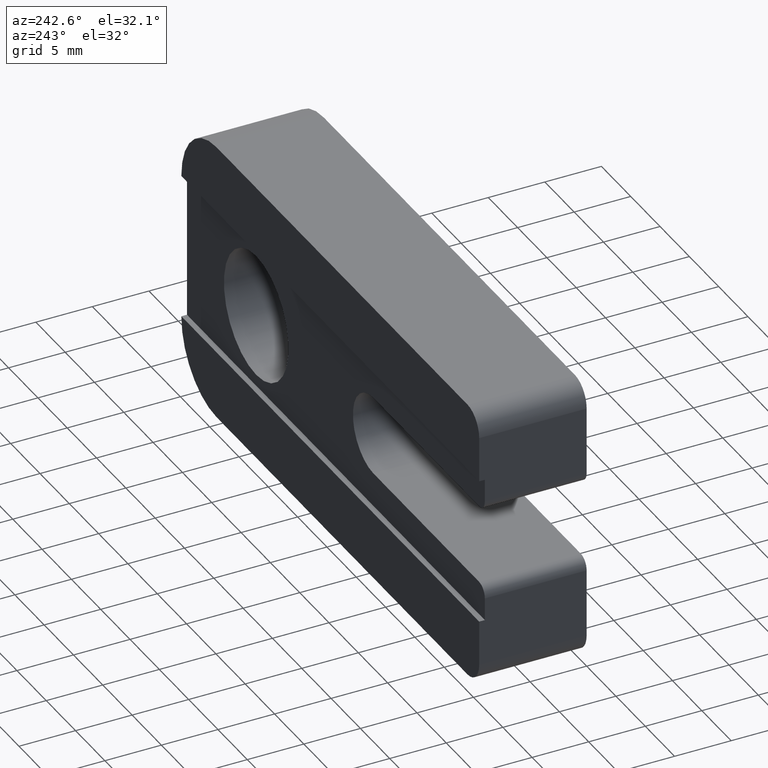
[diagram: clean part render]
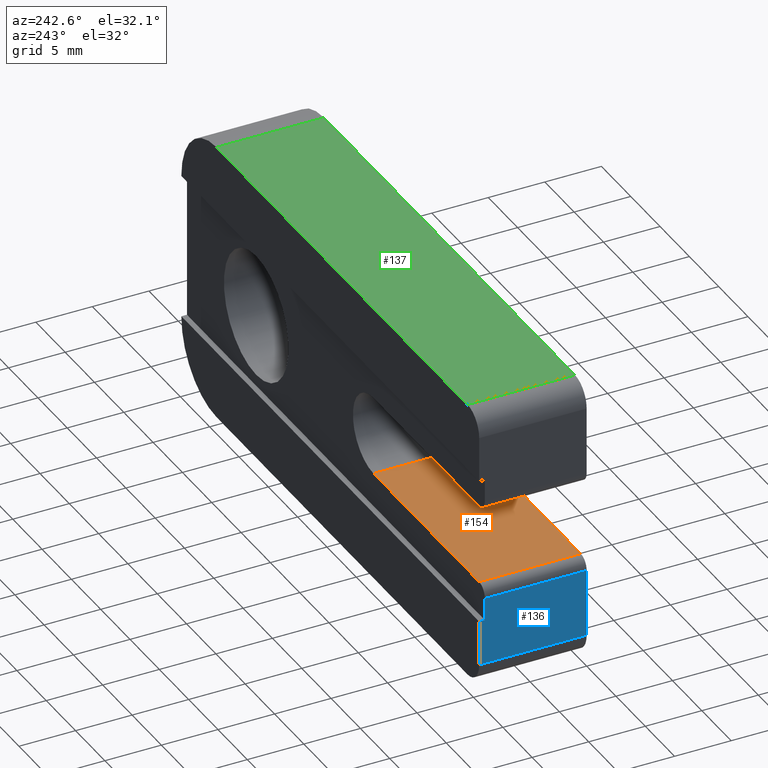
[diagram: same view with three faces highlighted in distinct colors, each labeled with its STEP entity id]
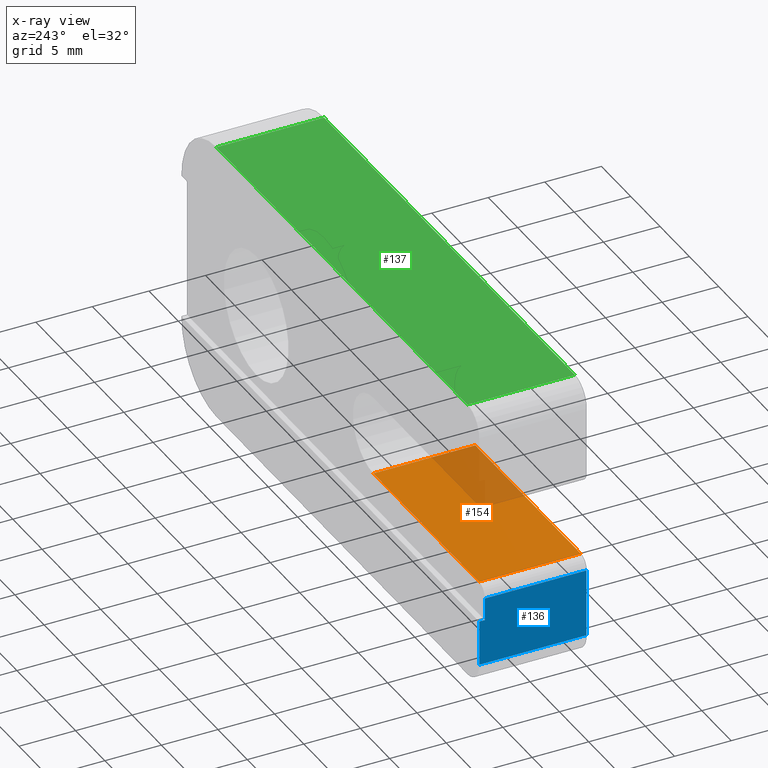
[diagram: x-ray of the same camera — body ghosted, the three highlighted faces saturated]
A machine part, auxiliary view with three faces highlighted in distinct colors.
The next image is the same camera in x-ray (body ghosted, the three faces saturated) — at least one of them is partly hidden behind the body in this view.
Their STEP definitions:

[orange] entity #154 — the highlighted planar face has unit normal (-0, 0, -1).
#6 = EDGE_CURVE ( 'NONE', #712, #718, #659, .T. ) ;
#18 = EDGE_CURVE ( 'NONE', #717, #718, #639, .T. ) ;
#44 = EDGE_CURVE ( 'NONE', #712, #714, #608, .T. ) ;
#46 = EDGE_CURVE ( 'NONE', #714, #717, #606, .T. ) ;
#96 = CARTESIAN_POINT ( 'NONE',  ( 18.99999999999999600, 0.0000000000000000000, -16.00000000000000000 ) ) ;
#101 = DIRECTION ( 'NONE',  ( -0.0000000000000000000, -1.000000000000000000, -0.0000000000000000000 ) ) ;
#104 = CARTESIAN_POINT ( 'NONE',  ( 18.99999999999999600, 9.500000000000000000, -16.00000000000000000 ) ) ;
#107 = DIRECTION ( 'NONE',  ( 1.000000000000000000, -0.0000000000000000000, -1.826024711554534200E-016 ) ) ;
#154 = ADVANCED_FACE ( 'NONE', ( #529 ), #161, .F. ) ;
#161 = PLANE ( 'NONE',  #726 ) ;
#164 = CARTESIAN_POINT ( 'NONE',  ( 18.99999999999999600, 9.500000000000000000, -16.00000000000000000 ) ) ;
#165 = DIRECTION ( 'NONE',  ( -1.826024711554534400E-016, 0.0000000000000000000, -1.000000000000000000 ) ) ;
#166 = DIRECTION ( 'NONE',  ( -1.000000000000000000, 0.0000000000000000000, 1.826024711554534400E-016 ) ) ;
#189 = CARTESIAN_POINT ( 'NONE',  ( 18.99999999999999600, 9.000000000000000000, -16.00000000000000000 ) ) ;
#191 = CARTESIAN_POINT ( 'NONE',  ( 1.000000000000000900, 9.000000000000000000, -15.99999999999999600 ) ) ;
#194 = CARTESIAN_POINT ( 'NONE',  ( 1.000000000000000900, 0.0000000000000000000, -15.99999999999999600 ) ) ;
#195 = CARTESIAN_POINT ( 'NONE',  ( 18.99999999999999600, 0.0000000000000000000, -16.00000000000000000 ) ) ;
#337 = EDGE_LOOP ( 'NONE', ( #668, #667, #666, #665 ) ) ;
#370 = DIRECTION ( 'NONE',  ( -1.000000000000000000, 0.0000000000000000000, 1.826024711554534400E-016 ) ) ;
#389 = DIRECTION ( 'NONE',  ( 0.0000000000000000000, -1.000000000000000000, 0.0000000000000000000 ) ) ;
#413 = CARTESIAN_POINT ( 'NONE',  ( 18.99999999999999600, 9.000000000000000000, -16.00000000000000000 ) ) ;
#445 = CARTESIAN_POINT ( 'NONE',  ( 1.000000000000000900, 9.500000000000000000, -15.99999999999999600 ) ) ;
#529 = FACE_OUTER_BOUND ( 'NONE', #337, .T. ) ;
#603 = VECTOR ( 'NONE', #389, 1000.000000000000000 ) ;
#605 = VECTOR ( 'NONE', #370, 1000.000000000000000 ) ;
#606 = LINE ( 'NONE', #445, #603 ) ;
#608 = LINE ( 'NONE', #413, #605 ) ;
#637 = VECTOR ( 'NONE', #107, 1000.000000000000000 ) ;
#639 = LINE ( 'NONE', #96, #637 ) ;
#652 = VECTOR ( 'NONE', #101, 1000.000000000000000 ) ;
#659 = LINE ( 'NONE', #104, #652 ) ;
#665 = ORIENTED_EDGE ( 'NONE', *, *, #6, .F. ) ;
#666 = ORIENTED_EDGE ( 'NONE', *, *, #18, .T. ) ;
#667 = ORIENTED_EDGE ( 'NONE', *, *, #46, .T. ) ;
#668 = ORIENTED_EDGE ( 'NONE', *, *, #44, .T. ) ;
#712 = VERTEX_POINT ( 'NONE', #189 ) ;
#714 = VERTEX_POINT ( 'NONE', #191 ) ;
#717 = VERTEX_POINT ( 'NONE', #194 ) ;
#718 = VERTEX_POINT ( 'NONE', #195 ) ;
#726 = AXIS2_PLACEMENT_3D ( 'NONE', #164, #165, #166 ) ;

[blue] entity #136 — the highlighted planar face has unit normal (1, 0, -0).
#8 = EDGE_CURVE ( 'NONE', #709, #713, #656, .T. ) ;
#9 = EDGE_CURVE ( 'NONE', #704, #708, #653, .T. ) ;
#11 = EDGE_CURVE ( 'NONE', #710, #711, #649, .T. ) ;
#32 = EDGE_CURVE ( 'NONE', #708, #711, #622, .T. ) ;
#48 = EDGE_CURVE ( 'NONE', #710, #713, #602, .T. ) ;
#76 = EDGE_CURVE ( 'NONE', #709, #704, #567, .T. ) ;
#81 = CARTESIAN_POINT ( 'NONE',  ( -1.541976423090495800E-015, 9.500000000000000000, -16.99999999999999600 ) ) ;
#84 = DIRECTION ( 'NONE',  ( 1.541976423090494400E-015, -0.0000000000000000000, 1.000000000000000000 ) ) ;
#85 = CARTESIAN_POINT ( 'NONE',  ( 0.0000000000000000000, 9.000000000000000000, -19.00000000000000400 ) ) ;
#89 = DIRECTION ( 'NONE',  ( 1.541976423090494400E-015, -0.0000000000000000000, 1.000000000000000000 ) ) ;
#94 = DIRECTION ( 'NONE',  ( 0.0000000000000000000, 0.0000000000000000000, 1.000000000000000000 ) ) ;
#115 = CARTESIAN_POINT ( 'NONE',  ( 0.0000000000000000000, 0.0000000000000000000, -15.99999999999999600 ) ) ;
#117 = CARTESIAN_POINT ( 'NONE',  ( 0.0000000000000000000, 9.500000000000000000, -15.99999999999999600 ) ) ;
#127 = DIRECTION ( 'NONE',  ( -0.0000000000000000000, 1.000000000000000000, -0.0000000000000000000 ) ) ;
#136 = ADVANCED_FACE ( 'NONE', ( #558 ), #364, .F. ) ;
#181 = CARTESIAN_POINT ( 'NONE',  ( -1.079383496163346100E-014, 0.0000000000000000000, -22.99999999999999600 ) ) ;
#185 = CARTESIAN_POINT ( 'NONE',  ( -1.541976423090495800E-015, 0.0000000000000000000, -16.99999999999999600 ) ) ;
#186 = CARTESIAN_POINT ( 'NONE',  ( -1.079383496163346100E-014, 9.500000000000000000, -22.99999999999999600 ) ) ;
#187 = CARTESIAN_POINT ( 'NONE',  ( 0.0000000000000000000, 9.000000000000000000, -19.00000000000000400 ) ) ;
#188 = CARTESIAN_POINT ( 'NONE',  ( 0.0000000000000000000, 9.000000000000000000, -16.99999999999999600 ) ) ;
#190 = CARTESIAN_POINT ( 'NONE',  ( 0.0000000000000000000, 9.500000000000000000, -19.00000000000000400 ) ) ;
#348 = EDGE_LOOP ( 'NONE', ( #674, #673, #672, #671, #670, #669 ) ) ;
#362 = CARTESIAN_POINT ( 'NONE',  ( 0.0000000000000000000, 9.500000000000000000, -15.99999999999999600 ) ) ;
#364 = PLANE ( 'NONE',  #745 ) ;
#374 = CARTESIAN_POINT ( 'NONE',  ( 0.0000000000000000000, 9.000000000000000000, -19.00000000000000400 ) ) ;
#375 = DIRECTION ( 'NONE',  ( -0.0000000000000000000, 1.000000000000000000, -0.0000000000000000000 ) ) ;
#427 = DIRECTION ( 'NONE',  ( 0.0000000000000000000, -1.000000000000000000, 0.0000000000000000000 ) ) ;
#444 = CARTESIAN_POINT ( 'NONE',  ( -1.079383496163346100E-014, 9.500000000000000000, -22.99999999999999600 ) ) ;
#452 = DIRECTION ( 'NONE',  ( -1.541976423090494400E-015, 0.0000000000000000000, -1.000000000000000000 ) ) ;
#459 = DIRECTION ( 'NONE',  ( 1.000000000000000000, 0.0000000000000000000, -1.541976423090494400E-015 ) ) ;
#558 = FACE_OUTER_BOUND ( 'NONE', #348, .T. ) ;
#564 = VECTOR ( 'NONE', #427, 1000.000000000000000 ) ;
#567 = LINE ( 'NONE', #444, #564 ) ;
#599 = VECTOR ( 'NONE', #375, 1000.000000000000000 ) ;
#602 = LINE ( 'NONE', #374, #599 ) ;
#620 = VECTOR ( 'NONE', #127, 1000.000000000000000 ) ;
#622 = LINE ( 'NONE', #81, #620 ) ;
#644 = VECTOR ( 'NONE', #94, 1000.000000000000000 ) ;
#648 = VECTOR ( 'NONE', #84, 1000.000000000000000 ) ;
#649 = LINE ( 'NONE', #85, #644 ) ;
#650 = VECTOR ( 'NONE', #89, 1000.000000000000000 ) ;
#653 = LINE ( 'NONE', #115, #648 ) ;
#656 = LINE ( 'NONE', #117, #650 ) ;
#669 = ORIENTED_EDGE ( 'NONE', *, *, #76, .T. ) ;
#670 = ORIENTED_EDGE ( 'NONE', *, *, #8, .F. ) ;
#671 = ORIENTED_EDGE ( 'NONE', *, *, #48, .T. ) ;
#672 = ORIENTED_EDGE ( 'NONE', *, *, #11, .F. ) ;
#673 = ORIENTED_EDGE ( 'NONE', *, *, #32, .T. ) ;
#674 = ORIENTED_EDGE ( 'NONE', *, *, #9, .T. ) ;
#704 = VERTEX_POINT ( 'NONE', #181 ) ;
#708 = VERTEX_POINT ( 'NONE', #185 ) ;
#709 = VERTEX_POINT ( 'NONE', #186 ) ;
#710 = VERTEX_POINT ( 'NONE', #187 ) ;
#711 = VERTEX_POINT ( 'NONE', #188 ) ;
#713 = VERTEX_POINT ( 'NONE', #190 ) ;
#745 = AXIS2_PLACEMENT_3D ( 'NONE', #362, #459, #452 ) ;

[green] entity #137 — the highlighted planar face has unit normal (0, 0, -1).
#16 = EDGE_CURVE ( 'NONE', #688, #699, #643, .T. ) ;
#24 = EDGE_CURVE ( 'NONE', #699, #690, #635, .T. ) ;
#43 = EDGE_CURVE ( 'NONE', #689, #690, #610, .T. ) ;
#68 = EDGE_CURVE ( 'NONE', #689, #688, #583, .T. ) ;
#78 = CARTESIAN_POINT ( 'NONE',  ( 0.0000000000000000000, 0.0000000000000000000, 0.0000000000000000000 ) ) ;
#91 = DIRECTION ( 'NONE',  ( 1.000000000000000000, 0.0000000000000000000, 0.0000000000000000000 ) ) ;
#98 = CARTESIAN_POINT ( 'NONE',  ( 44.79999999999999700, 9.500000000000000000, 0.0000000000000000000 ) ) ;
#110 = DIRECTION ( 'NONE',  ( -0.0000000000000000000, 1.000000000000000000, -0.0000000000000000000 ) ) ;
#137 = ADVANCED_FACE ( 'NONE', ( #557 ), #394, .F. ) ;
#162 = CARTESIAN_POINT ( 'NONE',  ( 44.79999999999999700, 9.500000000000000000, 0.0000000000000000000 ) ) ;
#163 = CARTESIAN_POINT ( 'NONE',  ( 2.000000000000000000, 9.500000000000000000, 0.0000000000000000000 ) ) ;
#168 = CARTESIAN_POINT ( 'NONE',  ( 2.000000000000000000, 0.0000000000000000000, 0.0000000000000000000 ) ) ;
#176 = CARTESIAN_POINT ( 'NONE',  ( 44.79999999999999700, 0.0000000000000000000, 0.0000000000000000000 ) ) ;
#333 = EDGE_LOOP ( 'NONE', ( #686, #685, #684, #683 ) ) ;
#366 = CARTESIAN_POINT ( 'NONE',  ( 2.000000000000000000, 9.500000000000000000, 0.0000000000000000000 ) ) ;
#371 = CARTESIAN_POINT ( 'NONE',  ( 0.0000000000000000000, 9.500000000000000000, 0.0000000000000000000 ) ) ;
#393 = DIRECTION ( 'NONE',  ( 1.000000000000000000, 0.0000000000000000000, 0.0000000000000000000 ) ) ;
#394 = PLANE ( 'NONE',  #747 ) ;
#426 = DIRECTION ( 'NONE',  ( 0.0000000000000000000, -1.000000000000000000, 0.0000000000000000000 ) ) ;
#446 = DIRECTION ( 'NONE',  ( -1.000000000000000000, 0.0000000000000000000, -0.0000000000000000000 ) ) ;
#469 = CARTESIAN_POINT ( 'NONE',  ( 0.0000000000000000000, 9.500000000000000000, 0.0000000000000000000 ) ) ;
#482 = DIRECTION ( 'NONE',  ( 0.0000000000000000000, 0.0000000000000000000, -1.000000000000000000 ) ) ;
#557 = FACE_OUTER_BOUND ( 'NONE', #333, .T. ) ;
#579 = VECTOR ( 'NONE', #426, 1000.000000000000000 ) ;
#583 = LINE ( 'NONE', #366, #579 ) ;
#607 = VECTOR ( 'NONE', #393, 1000.000000000000000 ) ;
#610 = LINE ( 'NONE', #371, #607 ) ;
#630 = VECTOR ( 'NONE', #110, 1000.000000000000000 ) ;
#635 = LINE ( 'NONE', #98, #630 ) ;
#641 = VECTOR ( 'NONE', #91, 1000.000000000000000 ) ;
#643 = LINE ( 'NONE', #78, #641 ) ;
#683 = ORIENTED_EDGE ( 'NONE', *, *, #24, .T. ) ;
#684 = ORIENTED_EDGE ( 'NONE', *, *, #16, .T. ) ;
#685 = ORIENTED_EDGE ( 'NONE', *, *, #68, .T. ) ;
#686 = ORIENTED_EDGE ( 'NONE', *, *, #43, .F. ) ;
#688 = VERTEX_POINT ( 'NONE', #168 ) ;
#689 = VERTEX_POINT ( 'NONE', #163 ) ;
#690 = VERTEX_POINT ( 'NONE', #162 ) ;
#699 = VERTEX_POINT ( 'NONE', #176 ) ;
#747 = AXIS2_PLACEMENT_3D ( 'NONE', #469, #482, #446 ) ;